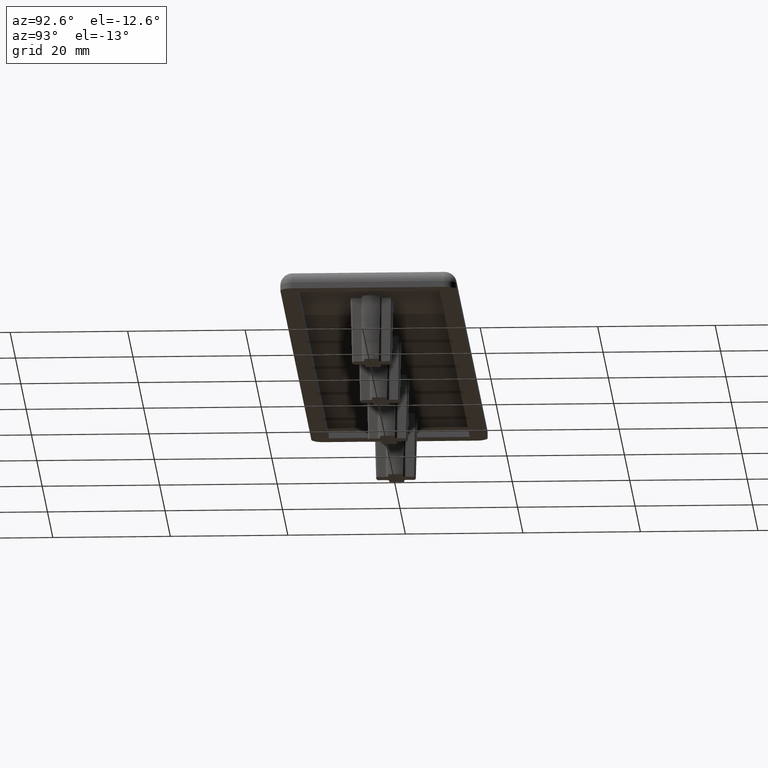
[diagram: clean part render]
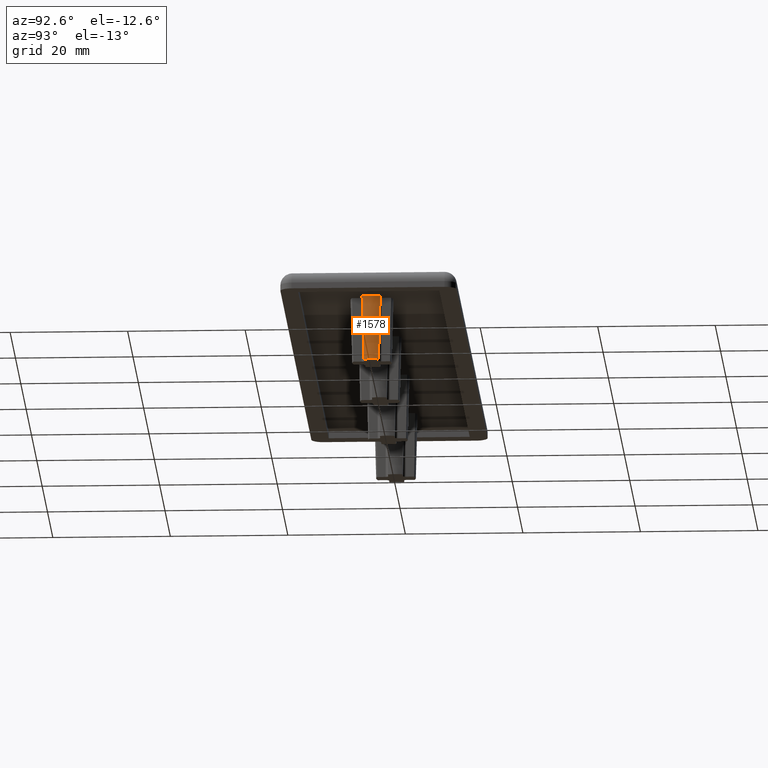
[diagram: same view with one face highlighted and labeled with its STEP entity id]
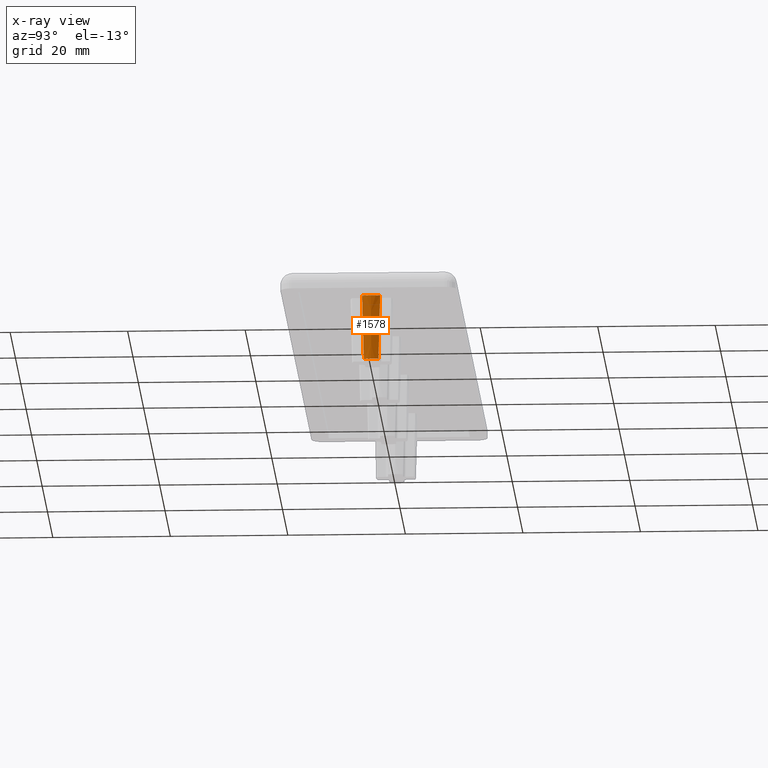
[diagram: x-ray of the same camera — body ghosted, the highlighted face saturated]
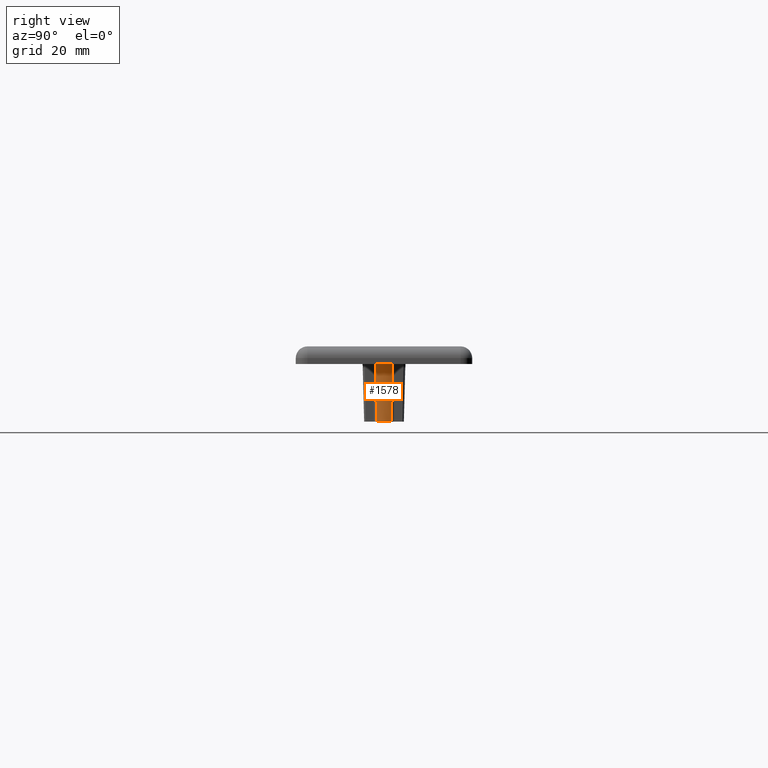
[diagram: same view with one face highlighted and labeled with its STEP entity id]
A machine part, auxiliary view. The second image highlights one B-rep face of the part: STEP entity #1578.
The next image is the same camera in x-ray: the body ghosted, the highlighted face saturated — about 0% of this face is hidden behind the body in this view.
A second angle (right view) of the same face is appended — the face is thin or edge-on in the first view.
In plain terms, the highlighted conical surface has half-angle 1.5 deg.
Its self-contained STEP definition (entity closure, byte-faithful):
#48=(
BOUNDED_CURVE()
B_SPLINE_CURVE(2,(#2518,#2519,#2520),.UNSPECIFIED.,.F.,.F.)
B_SPLINE_CURVE_WITH_KNOTS((3,3),(0.201847277899076,1.32441866954742),
 .UNSPECIFIED.)
CURVE()
GEOMETRIC_REPRESENTATION_ITEM()
RATIONAL_B_SPLINE_CURVE((1.,1.,1.))
REPRESENTATION_ITEM('')
);
#49=(
BOUNDED_CURVE()
B_SPLINE_CURVE(2,(#2526,#2527,#2528),.UNSPECIFIED.,.F.,.F.)
B_SPLINE_CURVE_WITH_KNOTS((3,3),(0.201847277910607,1.32441866958046),
 .UNSPECIFIED.)
CURVE()
GEOMETRIC_REPRESENTATION_ITEM()
RATIONAL_B_SPLINE_CURVE((1.,1.,1.))
REPRESENTATION_ITEM('')
);
#147=FACE_OUTER_BOUND('',#238,.T.);
#238=EDGE_LOOP('',(#1198,#1199,#1200,#1201));
#588=CIRCLE('',#1706,3.66304513726106);
#589=CIRCLE('',#1707,3.375);
#702=VERTEX_POINT('',#2515);
#703=VERTEX_POINT('',#2517);
#704=VERTEX_POINT('',#2523);
#705=VERTEX_POINT('',#2525);
#891=EDGE_CURVE('',#703,#702,#48,.T.);
#893=EDGE_CURVE('',#704,#702,#588,.T.);
#894=EDGE_CURVE('',#705,#704,#49,.T.);
#895=EDGE_CURVE('',#703,#705,#589,.T.);
#1198=ORIENTED_EDGE('',*,*,#893,.F.);
#1199=ORIENTED_EDGE('',*,*,#894,.F.);
#1200=ORIENTED_EDGE('',*,*,#895,.F.);
#1201=ORIENTED_EDGE('',*,*,#891,.T.);
#1527=CONICAL_SURFACE('',#1705,3.375,1.5);
#1578=ADVANCED_FACE('',(#147),#1527,.T.);
#1705=AXIS2_PLACEMENT_3D('',#2522,#2000,#2001);
#1706=AXIS2_PLACEMENT_3D('',#2524,#2002,#2003);
#1707=AXIS2_PLACEMENT_3D('',#2529,#2004,#2005);
#2000=DIRECTION('center_axis',(0.,0.,1.));
#2001=DIRECTION('ref_axis',(-1.,0.,0.));
#2002=DIRECTION('center_axis',(0.,0.,1.));
#2003=DIRECTION('ref_axis',(-1.,0.,0.));
#2004=DIRECTION('center_axis',(0.,0.,-1.));
#2005=DIRECTION('ref_axis',(-1.,0.,0.));
#2515=CARTESIAN_POINT('',(48.3245024941124,1.53804513726106,1.2));
#2517=CARTESIAN_POINT('',(48.1349840509961,1.25,-9.8));
#2518=CARTESIAN_POINT('Ctrl Pts',(48.1349840509963,1.25000000000022,-9.79999999999157));
#2519=CARTESIAN_POINT('Ctrl Pts',(48.2297432725535,1.38979701094916,-4.46136753752234));
#2520=CARTESIAN_POINT('Ctrl Pts',(48.3245024941124,1.53804513726106,1.2));
#2522=CARTESIAN_POINT('Origin',(45.,0.,-9.8));
#2523=CARTESIAN_POINT('',(48.3245024941123,-1.53804513726106,1.2));
#2524=CARTESIAN_POINT('Origin',(45.,0.,1.2));
#2525=CARTESIAN_POINT('',(48.1349840509961,-1.25,-9.8));
#2526=CARTESIAN_POINT('Ctrl Pts',(48.1349840509964,-1.25000000000022,-9.79999999999157));
#2527=CARTESIAN_POINT('Ctrl Pts',(48.2297432725507,-1.3897970109447,-4.46136753769229));
#2528=CARTESIAN_POINT('Ctrl Pts',(48.3245024941123,-1.53804513726106,1.2));
#2529=CARTESIAN_POINT('Origin',(45.,0.,-9.8));